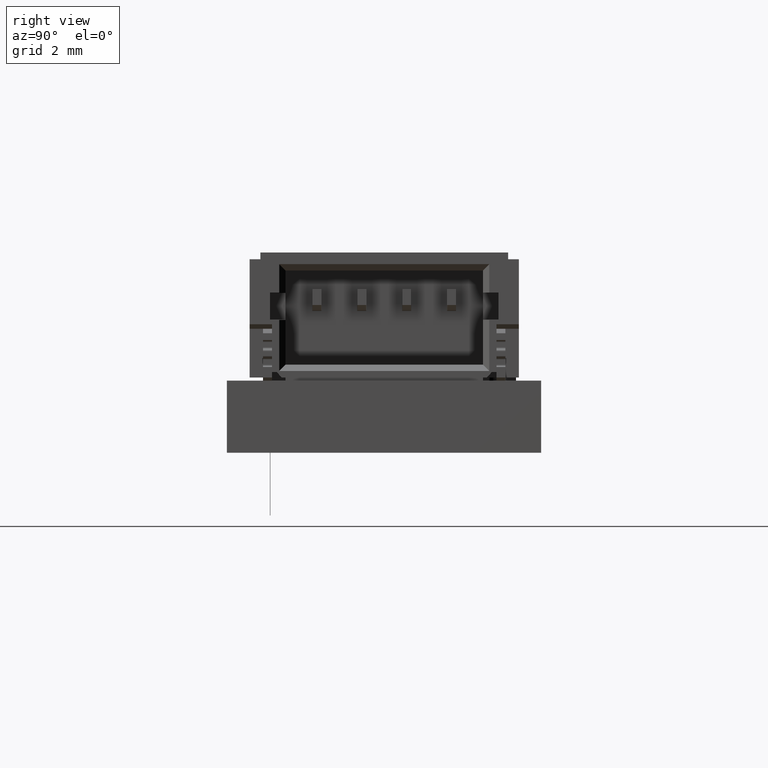
[diagram: clean part render]
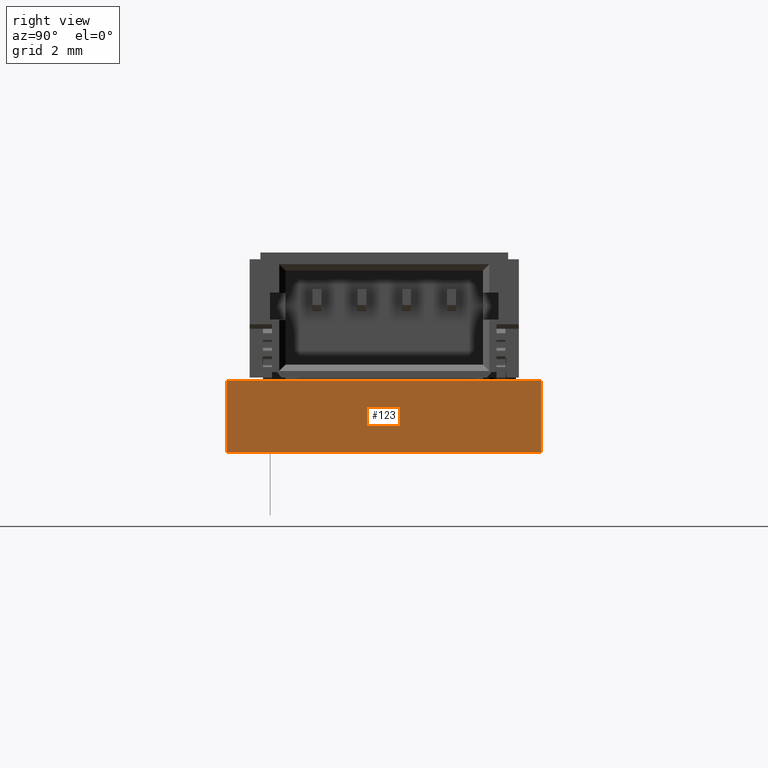
[diagram: same view with one face highlighted and labeled with its STEP entity id]
A machine part, right view. The second image highlights one B-rep face of the part: STEP entity #123.
In plain terms, the highlighted planar face has unit normal (-1, 0, 0).
Its self-contained STEP definition (entity closure, byte-faithful):
#87 = EDGE_CURVE('',#88,#90,#92,.T.);
#88 = VERTEX_POINT('',#89);
#89 = CARTESIAN_POINT('',(13.17869,-0.33935,-0.803));
#90 = VERTEX_POINT('',#91);
#91 = CARTESIAN_POINT('',(13.17869,-0.33935,0.803));
#92 = LINE('',#93,#94);
#93 = CARTESIAN_POINT('',(13.17869,-0.33935,-0.803));
#94 = VECTOR('',#95,1.);
#95 = DIRECTION('',(0.,0.,1.));
#123 = ADVANCED_FACE('',(#124),#149,.F.);
#124 = FACE_BOUND('',#125,.F.);
#125 = EDGE_LOOP('',(#126,#136,#142,#143));
#126 = ORIENTED_EDGE('',*,*,#127,.T.);
#127 = EDGE_CURVE('',#128,#130,#132,.T.);
#128 = VERTEX_POINT('',#129);
#129 = CARTESIAN_POINT('',(13.17869,-7.33935,-0.803));
#130 = VERTEX_POINT('',#131);
#131 = CARTESIAN_POINT('',(13.17869,-7.33935,0.803));
#132 = LINE('',#133,#134);
#133 = CARTESIAN_POINT('',(13.17869,-7.33935,-0.803));
#134 = VECTOR('',#135,1.);
#135 = DIRECTION('',(0.,0.,1.));
#136 = ORIENTED_EDGE('',*,*,#137,.T.);
#137 = EDGE_CURVE('',#130,#90,#138,.T.);
#138 = LINE('',#139,#140);
#139 = CARTESIAN_POINT('',(13.17869,-7.33935,0.803));
#140 = VECTOR('',#141,1.);
#141 = DIRECTION('',(0.,1.,0.));
#142 = ORIENTED_EDGE('',*,*,#87,.F.);
#143 = ORIENTED_EDGE('',*,*,#144,.F.);
#144 = EDGE_CURVE('',#128,#88,#145,.T.);
#145 = LINE('',#146,#147);
#146 = CARTESIAN_POINT('',(13.17869,-7.33935,-0.803));
#147 = VECTOR('',#148,1.);
#148 = DIRECTION('',(0.,1.,0.));
#149 = PLANE('',#150);
#150 = AXIS2_PLACEMENT_3D('',#151,#152,#153);
#151 = CARTESIAN_POINT('',(13.17869,-7.33935,-0.803));
#152 = DIRECTION('',(-1.,0.,0.));
#153 = DIRECTION('',(0.,1.,0.));